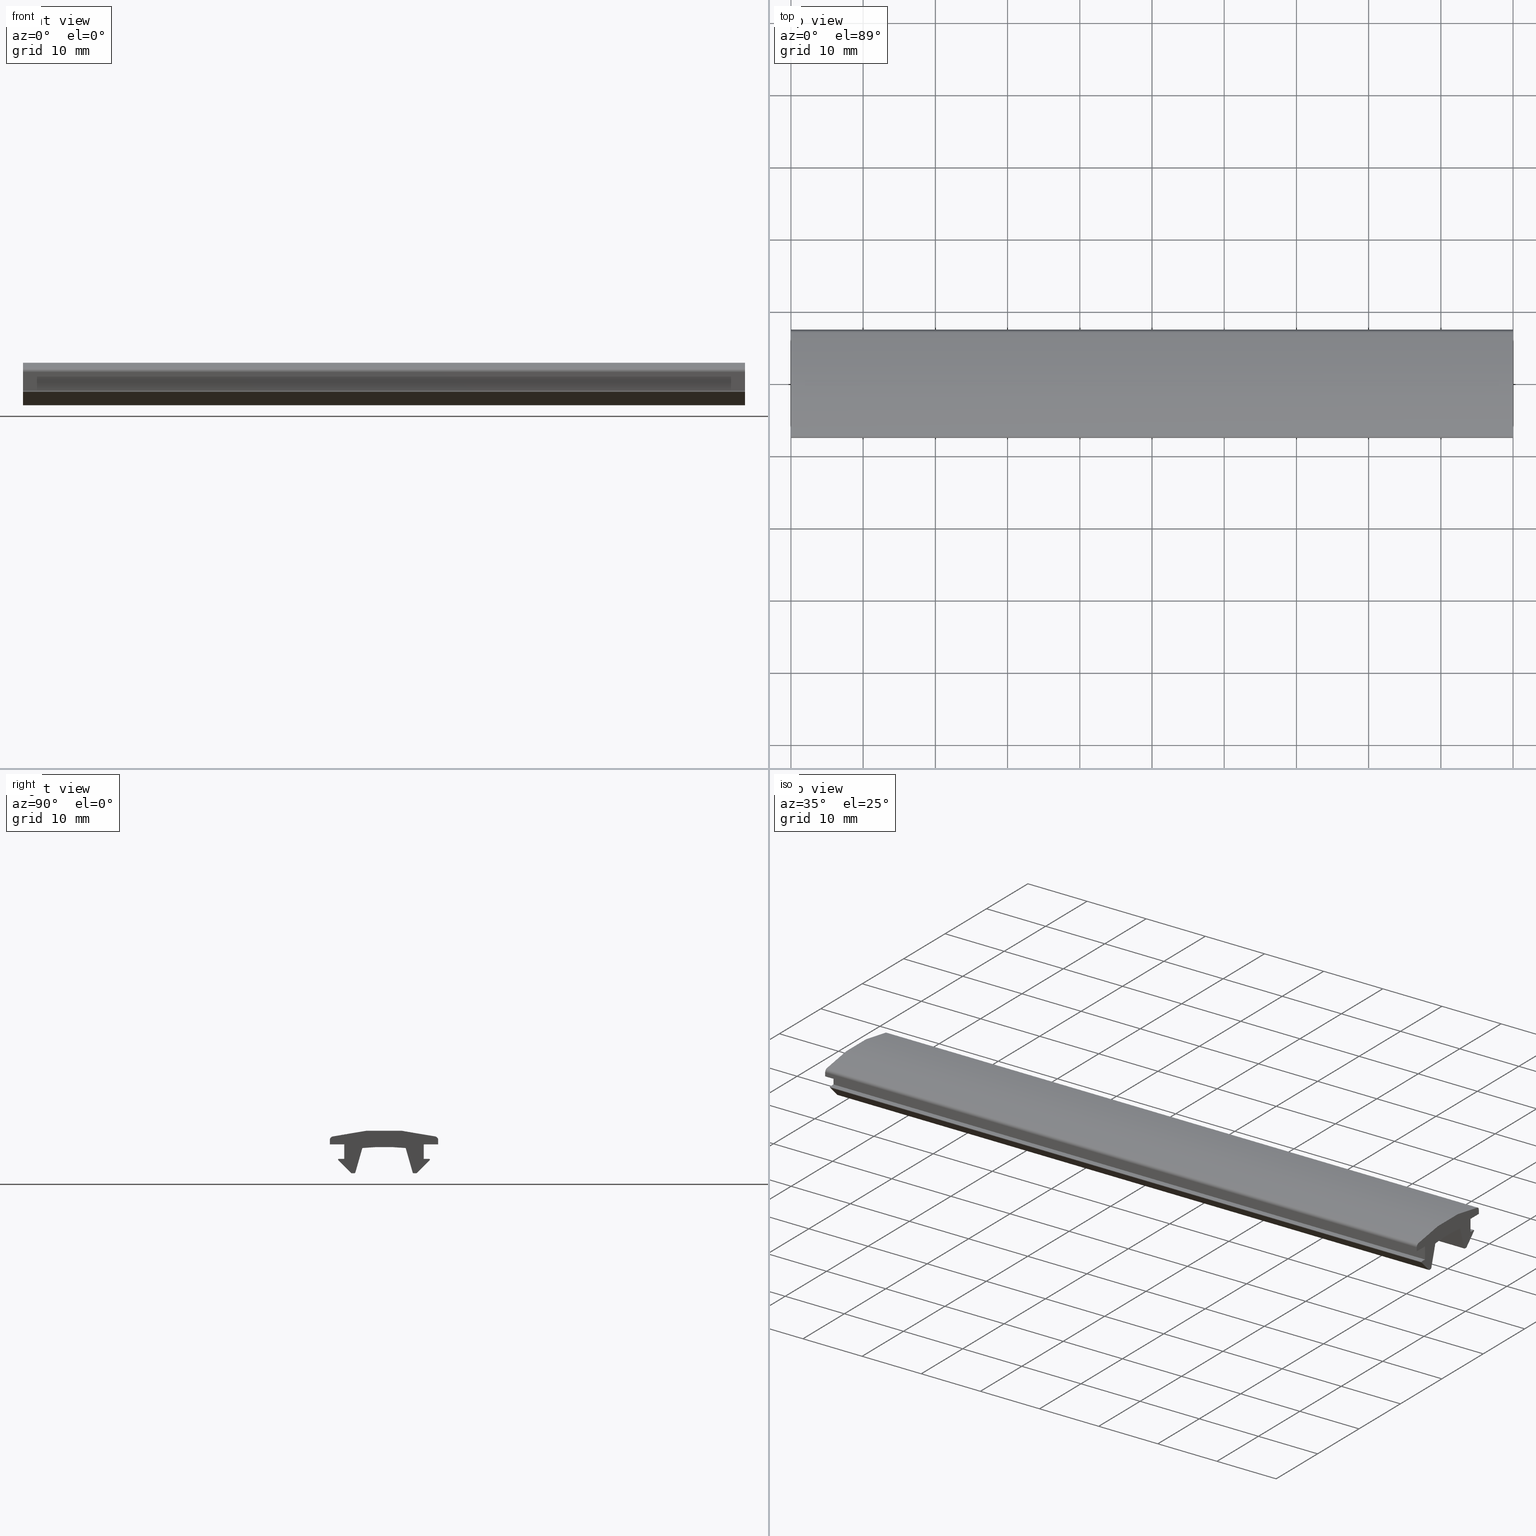
[diagram: canonical four-view strip — front | top / right | iso, engineering-drawing reading convention]
A machine part, canonical four-view strip (front | top / right | iso — engineering-drawing reading convention). The complete STEP part file that produces these views, byte-faithful:
ISO-10303-21;
HEADER;
/****************************************************************
 * Generated by software with PDE/Lib inside                    *
 * PDElib Version v4.4, created Mon 02/23/2004                  *
 * International Technegroup Inc. (www.iti-oh.com)              *
 ****************************************************************/
FILE_DESCRIPTION(('STEP AP203'),'2;1');
FILE_NAME('21.007.00.stp','2011-02-14T09:10:53',(''),(''),'2009.3.110','THINKDESIGN','');
FILE_SCHEMA(('CONFIG_CONTROL_DESIGN'));
ENDSEC;
DATA;
#2=CARTESIAN_POINT('',(100.000000009999990,-6.258578643762680,-1.750281450180138));
#3=DIRECTION('',(-1.0,-6.123234E-017,0.0));
#4=DIRECTION('',(-5.657131E-017,0.923879532511289,0.382683432365084));
#5=AXIS2_PLACEMENT_3D('',#2,#3,#4);
#6=CYLINDRICAL_SURFACE('',#5,0.100000000000000);
#7=CARTESIAN_POINT('',(100.0,-6.358578643762679,-1.750281450180139));
#8=VERTEX_POINT('',#7);
#9=CARTESIAN_POINT('',(100.0,-6.329289321881336,-1.820992128298793));
#10=VERTEX_POINT('',#9);
#11=CARTESIAN_POINT('',(100.0,-6.258578643762680,-1.750281450180139));
#12=DIRECTION('',(1.0,6.123234E-017,-3.749399E-033));
#13=DIRECTION('',(6.123234E-017,-1.0,6.123234E-017));
#14=AXIS2_PLACEMENT_3D('',#11,#12,#13);
#15=CIRCLE('',#14,0.100000000000000);
#16=EDGE_CURVE('',#8,#10,#15,.T.);
#17=ORIENTED_EDGE('',*,*,#16,.F.);
#18=CARTESIAN_POINT('',(3.893506E-016,-6.358578643762685,-1.750281450180139));
#19=VERTEX_POINT('',#18);
#20=CARTESIAN_POINT('',(100.0,-6.358578643762679,-1.750281450180139));
#21=DIRECTION('',(-1.0,0.0,0.0));
#22=VECTOR('',#21,100.0);
#23=LINE('',#20,#22);
#24=EDGE_CURVE('',#8,#19,#23,.T.);
#25=ORIENTED_EDGE('',*,*,#24,.T.);
#26=CARTESIAN_POINT('',(3.875572E-016,-6.329289321881340,-1.820992128298793));
#27=VERTEX_POINT('',#26);
#28=CARTESIAN_POINT('',(3.832274E-016,-6.258578643762686,-1.750281450180139));
#29=DIRECTION('',(-1.0,-6.123234E-017,3.749399E-033));
#30=DIRECTION('',(6.123234E-017,-1.0,6.123234E-017));
#31=AXIS2_PLACEMENT_3D('',#28,#29,#30);
#32=CIRCLE('',#31,0.100000000000000);
#33=EDGE_CURVE('',#27,#19,#32,.T.);
#34=ORIENTED_EDGE('',*,*,#33,.F.);
#35=CARTESIAN_POINT('',(100.0,-6.329289321881334,-1.820992128298793));
#36=DIRECTION('',(-1.0,0.0,0.0));
#37=VECTOR('',#36,100.0);
#38=LINE('',#35,#37);
#39=EDGE_CURVE('',#10,#27,#38,.T.);
#40=ORIENTED_EDGE('',*,*,#39,.F.);
#41=EDGE_LOOP('',(#17,#25,#34,#40));
#42=FACE_OUTER_BOUND('',#41,.T.);
#43=ADVANCED_FACE('',(#42),#6,.T.);
#44=CARTESIAN_POINT('',(100.0,8.250000000000011,-3.949722514642862));
#45=DIRECTION('',(-1.0,0.0,0.0));
#46=DIRECTION('',(0.0,-1.0,0.0));
#47=AXIS2_PLACEMENT_3D('',#44,#45,#46);
#48=PLANE('',#47);
#49=CARTESIAN_POINT('',(100.0,-5.499999999999989,-1.650281450180138));
#50=VERTEX_POINT('',#49);
#51=CARTESIAN_POINT('',(100.0,-6.258578643762679,-1.650281450180138));
#52=VERTEX_POINT('',#51);
#53=CARTESIAN_POINT('',(100.0,-5.499999999999989,-1.650281450180138));
#54=DIRECTION('',(0.0,-1.0,0.0));
#55=VECTOR('',#54,0.758578643762690);
#56=LINE('',#53,#55);
#57=EDGE_CURVE('',#50,#52,#56,.T.);
#58=ORIENTED_EDGE('',*,*,#57,.T.);
#59=CARTESIAN_POINT('',(100.0,-6.258578643762680,-1.750281450180139));
#60=DIRECTION('',(1.0,6.123234E-017,-3.749399E-033));
#61=DIRECTION('',(6.123234E-017,-1.0,6.123234E-017));
#62=AXIS2_PLACEMENT_3D('',#59,#60,#61);
#63=CIRCLE('',#62,0.100000000000000);
#64=EDGE_CURVE('',#52,#8,#63,.T.);
#65=ORIENTED_EDGE('',*,*,#64,.T.);
#66=ORIENTED_EDGE('',*,*,#16,.T.);
#67=CARTESIAN_POINT('',(100.0,-4.558578643762683,-3.591702806417446));
#68=VERTEX_POINT('',#67);
#69=CARTESIAN_POINT('',(100.0,-6.329289321881337,-1.820992128298791));
#70=DIRECTION('',(0.0,0.707106781186547,-0.707106781186548));
#71=VECTOR('',#70,2.504163056034261);
#72=LINE('',#69,#71);
#73=EDGE_CURVE('',#10,#68,#72,.T.);
#74=ORIENTED_EDGE('',*,*,#73,.T.);
#75=CARTESIAN_POINT('',(100.0,-4.417157287525374,-3.650281450180138));
#76=VERTEX_POINT('',#75);
#77=CARTESIAN_POINT('',(100.0,-4.417157287525374,-3.450281450180138));
#78=DIRECTION('',(1.0,6.123234E-017,-3.749399E-033));
#79=DIRECTION('',(6.123234E-017,-1.0,6.123234E-017));
#80=AXIS2_PLACEMENT_3D('',#77,#78,#79);
#81=CIRCLE('',#80,0.200000000000000);
#82=EDGE_CURVE('',#68,#76,#81,.T.);
#83=ORIENTED_EDGE('',*,*,#82,.T.);
#84=CARTESIAN_POINT('',(100.0,-4.150860282550864,-3.650281450180138));
#85=VERTEX_POINT('',#84);
#86=CARTESIAN_POINT('',(100.0,-4.150860282550864,-3.650281450180137));
#87=DIRECTION('',(0.0,-1.0,0.0));
#88=VECTOR('',#87,0.266297004974509);
#89=LINE('',#86,#88);
#90=EDGE_CURVE('',#85,#76,#89,.T.);
#91=ORIENTED_EDGE('',*,*,#90,.F.);
#92=CARTESIAN_POINT('',(100.0,-3.958555493022700,-3.505225675759615));
#93=VERTEX_POINT('',#92);
#94=CARTESIAN_POINT('',(100.0,-4.150860282550863,-3.450281450180138));
#95=DIRECTION('',(1.0,6.123234E-017,-3.749399E-033));
#96=DIRECTION('',(6.123234E-017,-1.0,6.123234E-017));
#97=AXIS2_PLACEMENT_3D('',#94,#95,#96);
#98=CIRCLE('',#97,0.200000000000000);
#99=EDGE_CURVE('',#85,#93,#98,.T.);
#100=ORIENTED_EDGE('',*,*,#99,.T.);
#101=CARTESIAN_POINT('',(100.0,-2.999999999999973,-0.150281450180138));
#102=VERTEX_POINT('',#101);
#103=CARTESIAN_POINT('',(100.0,-2.999999999999983,-0.150281450180136));
#104=DIRECTION('',(0.0,-0.274721127897380,-0.961523947640823));
#105=VECTOR('',#104,3.489194662089393);
#106=LINE('',#103,#105);
#107=EDGE_CURVE('',#102,#93,#106,.T.);
#108=ORIENTED_EDGE('',*,*,#107,.F.);
#109=CARTESIAN_POINT('',(100.0,3.000000000000010,-0.150281450180143));
#110=VERTEX_POINT('',#109);
#111=CARTESIAN_POINT('',(100.0,-8.881784E-016,-30.018956110195745));
#112=DIRECTION('',(1.0,6.123234E-017,-3.749399E-033));
#113=DIRECTION('',(6.123234E-017,-1.0,6.123234E-017));
#114=AXIS2_PLACEMENT_3D('',#111,#112,#113);
#115=CIRCLE('',#114,30.018956110195745);
#116=EDGE_CURVE('',#110,#102,#115,.T.);
#117=ORIENTED_EDGE('',*,*,#116,.F.);
#118=CARTESIAN_POINT('',(100.0,3.958555493022716,-3.505225675759613));
#119=VERTEX_POINT('',#118);
#120=CARTESIAN_POINT('',(100.0,3.958555493022716,-3.505225675759613));
#121=DIRECTION('',(0.0,-0.274721127897378,0.961523947640823));
#122=VECTOR('',#121,3.489194662089381);
#123=LINE('',#120,#122);
#124=EDGE_CURVE('',#119,#110,#123,.T.);
#125=ORIENTED_EDGE('',*,*,#124,.F.);
#126=CARTESIAN_POINT('',(100.0,4.150860282550879,-3.650281450180138));
#127=VERTEX_POINT('',#126);
#128=CARTESIAN_POINT('',(100.0,4.150860282550879,-3.450281450180138));
#129=DIRECTION('',(1.0,6.123234E-017,-3.749399E-033));
#130=DIRECTION('',(6.123234E-017,-1.0,6.123234E-017));
#131=AXIS2_PLACEMENT_3D('',#128,#129,#130);
#132=CIRCLE('',#131,0.200000000000000);
#133=EDGE_CURVE('',#119,#127,#132,.T.);
#134=ORIENTED_EDGE('',*,*,#133,.T.);
#135=CARTESIAN_POINT('',(100.0,4.417157287525392,-3.650281450180138));
#136=VERTEX_POINT('',#135);
#137=CARTESIAN_POINT('',(100.0,4.417157287525392,-3.650281450180138));
#138=DIRECTION('',(0.0,-1.0,0.0));
#139=VECTOR('',#138,0.266297004974513);
#140=LINE('',#137,#139);
#141=EDGE_CURVE('',#136,#127,#140,.T.);
#142=ORIENTED_EDGE('',*,*,#141,.F.);
#143=CARTESIAN_POINT('',(100.0,4.558578643762702,-3.591702806417446));
#144=VERTEX_POINT('',#143);
#145=CARTESIAN_POINT('',(100.0,4.417157287525392,-3.450281450180138));
#146=DIRECTION('',(1.0,6.123234E-017,-3.749399E-033));
#147=DIRECTION('',(6.123234E-017,-1.0,6.123234E-017));
#148=AXIS2_PLACEMENT_3D('',#145,#146,#147);
#149=CIRCLE('',#148,0.200000000000000);
#150=EDGE_CURVE('',#136,#144,#149,.T.);
#151=ORIENTED_EDGE('',*,*,#150,.T.);
#152=CARTESIAN_POINT('',(100.0,6.329289321881354,-1.820992128298794));
#153=VERTEX_POINT('',#152);
#154=CARTESIAN_POINT('',(100.0,6.329289321881354,-1.820992128298794));
#155=DIRECTION('',(0.0,-0.707106781186547,-0.707106781186548));
#156=VECTOR('',#155,2.504163056034259);
#157=LINE('',#154,#156);
#158=EDGE_CURVE('',#153,#144,#157,.T.);
#159=ORIENTED_EDGE('',*,*,#158,.F.);
#160=CARTESIAN_POINT('',(100.0,6.258578643762696,-1.650281450180139));
#161=VERTEX_POINT('',#160);
#162=CARTESIAN_POINT('',(100.0,6.258578643762696,-1.750281450180139));
#163=DIRECTION('',(1.0,6.123234E-017,-3.749399E-033));
#164=DIRECTION('',(6.123234E-017,-1.0,6.123234E-017));
#165=AXIS2_PLACEMENT_3D('',#162,#163,#164);
#166=CIRCLE('',#165,0.099999999999999);
#167=EDGE_CURVE('',#153,#161,#166,.T.);
#168=ORIENTED_EDGE('',*,*,#167,.T.);
#169=CARTESIAN_POINT('',(100.0,5.500000000000010,-1.650281450180139));
#170=VERTEX_POINT('',#169);
#171=CARTESIAN_POINT('',(100.0,5.500000000000010,-1.650281450180139));
#172=DIRECTION('',(0.0,1.0,0.0));
#173=VECTOR('',#172,0.758578643762686);
#174=LINE('',#171,#173);
#175=EDGE_CURVE('',#170,#161,#174,.T.);
#176=ORIENTED_EDGE('',*,*,#175,.F.);
#177=CARTESIAN_POINT('',(100.0,5.500000000000010,0.349718549819861));
#178=VERTEX_POINT('',#177);
#179=CARTESIAN_POINT('',(100.0,5.500000000000010,0.349718549819861));
#180=DIRECTION('',(0.0,0.0,-1.0));
#181=VECTOR('',#180,2.0);
#182=LINE('',#179,#181);
#183=EDGE_CURVE('',#178,#170,#182,.T.);
#184=ORIENTED_EDGE('',*,*,#183,.F.);
#185=CARTESIAN_POINT('',(100.0,7.500000000000010,0.349718549819861));
#186=VERTEX_POINT('',#185);
#187=CARTESIAN_POINT('',(100.0,7.500000000000010,0.349718549819861));
#188=DIRECTION('',(0.0,-1.0,0.0));
#189=VECTOR('',#188,2.0);
#190=LINE('',#187,#189);
#191=EDGE_CURVE('',#186,#178,#190,.T.);
#192=ORIENTED_EDGE('',*,*,#191,.F.);
#193=CARTESIAN_POINT('',(100.0,7.500000000000010,0.964682297960203));
#194=VERTEX_POINT('',#193);
#195=CARTESIAN_POINT('',(100.0,7.500000000000010,0.964682297960203));
#196=DIRECTION('',(0.0,0.0,-1.0));
#197=VECTOR('',#196,0.614963748140341);
#198=LINE('',#195,#197);
#199=EDGE_CURVE('',#194,#186,#198,.T.);
#200=ORIENTED_EDGE('',*,*,#199,.F.);
#201=CARTESIAN_POINT('',(100.0,7.124444444444454,1.448948320149363));
#202=VERTEX_POINT('',#201);
#203=CARTESIAN_POINT('',(100.0,7.000000000000004,0.964682297960203));
#204=DIRECTION('',(1.0,6.123234E-017,-3.749399E-033));
#205=DIRECTION('',(6.123234E-017,-1.0,6.123234E-017));
#206=AXIS2_PLACEMENT_3D('',#203,#204,#205);
#207=CIRCLE('',#206,0.500000000000001);
#208=EDGE_CURVE('',#194,#202,#207,.T.);
#209=ORIENTED_EDGE('',*,*,#208,.T.);
#210=CARTESIAN_POINT('',(100.0,-7.124444444444433,1.448948320149374));
#211=VERTEX_POINT('',#210);
#212=CARTESIAN_POINT('',(100.0,-1.065814E-014,-26.275281450180184));
#213=DIRECTION('',(1.0,6.123234E-017,-3.749399E-033));
#214=DIRECTION('',(6.123234E-017,-1.0,6.123234E-017));
#215=AXIS2_PLACEMENT_3D('',#212,#213,#214);
#216=CIRCLE('',#215,28.625000000000050);
#217=EDGE_CURVE('',#202,#211,#216,.T.);
#218=ORIENTED_EDGE('',*,*,#217,.T.);
#219=CARTESIAN_POINT('',(100.0,-7.499999999999989,0.964682297960210));
#220=VERTEX_POINT('',#219);
#221=CARTESIAN_POINT('',(100.0,-6.999999999999989,0.964682297960210));
#222=DIRECTION('',(1.0,6.123234E-017,-3.749399E-033));
#223=DIRECTION('',(6.123234E-017,-1.0,6.123234E-017));
#224=AXIS2_PLACEMENT_3D('',#221,#222,#223);
#225=CIRCLE('',#224,0.500000000000000);
#226=EDGE_CURVE('',#211,#220,#225,.T.);
#227=ORIENTED_EDGE('',*,*,#226,.T.);
#228=CARTESIAN_POINT('',(100.0,-7.499999999999989,0.349718549819862));
#229=VERTEX_POINT('',#228);
#230=CARTESIAN_POINT('',(100.0,-7.499999999999989,0.349718549819862));
#231=DIRECTION('',(0.0,0.0,1.0));
#232=VECTOR('',#231,0.614963748140347);
#233=LINE('',#230,#232);
#234=EDGE_CURVE('',#229,#220,#233,.T.);
#235=ORIENTED_EDGE('',*,*,#234,.F.);
#236=CARTESIAN_POINT('',(100.0,-5.499999999999989,0.349718549819862));
#237=VERTEX_POINT('',#236);
#238=CARTESIAN_POINT('',(100.0,-7.499999999999989,0.349718549819862));
#239=DIRECTION('',(0.0,1.0,0.0));
#240=VECTOR('',#239,2.0);
#241=LINE('',#238,#240);
#242=EDGE_CURVE('',#229,#237,#241,.T.);
#243=ORIENTED_EDGE('',*,*,#242,.T.);
#244=CARTESIAN_POINT('',(100.0,-5.499999999999989,0.349718549819862));
#245=DIRECTION('',(0.0,0.0,-1.0));
#246=VECTOR('',#245,2.0);
#247=LINE('',#244,#246);
#248=EDGE_CURVE('',#237,#50,#247,.T.);
#249=ORIENTED_EDGE('',*,*,#248,.T.);
#250=EDGE_LOOP('',(#58,#65,#66,#74,#83,#91,#100,#108,#117,#125,#134,#142,#151,#159,#168,#176,#184,#192,#200,#209,#218,#227,#235,#243,#249));
#251=FACE_OUTER_BOUND('',#250,.T.);
#252=ADVANCED_FACE('',(#251),#48,.F.);
#253=CARTESIAN_POINT('',(-5.051668E-016,8.250000000000004,-3.949722514642862));
#254=DIRECTION('',(-1.0,0.0,0.0));
#255=DIRECTION('',(0.0,-1.0,0.0));
#256=AXIS2_PLACEMENT_3D('',#253,#254,#255);
#257=PLANE('',#256);
#258=CARTESIAN_POINT('',(2.791324E-016,-4.558578643762690,-3.591702806417445));
#259=VERTEX_POINT('',#258);
#260=CARTESIAN_POINT('',(3.875572E-016,-6.329289321881340,-1.820992128298793));
#261=DIRECTION('',(-4.329780E-017,0.707106781186547,-0.707106781186548));
#262=VECTOR('',#261,2.504163056034258);
#263=LINE('',#260,#262);
#264=EDGE_CURVE('',#27,#259,#263,.T.);
#265=ORIENTED_EDGE('',*,*,#264,.F.);
#266=ORIENTED_EDGE('',*,*,#33,.T.);
#267=CARTESIAN_POINT('',(3.832274E-016,-6.258578643762686,-1.650281450180138));
#268=VERTEX_POINT('',#267);
#269=CARTESIAN_POINT('',(3.832274E-016,-6.258578643762686,-1.750281450180139));
#270=DIRECTION('',(-1.0,-6.123234E-017,3.749399E-033));
#271=DIRECTION('',(6.123234E-017,-1.0,6.123234E-017));
#272=AXIS2_PLACEMENT_3D('',#269,#270,#271);
#273=CIRCLE('',#272,0.100000000000000);
#274=EDGE_CURVE('',#19,#268,#273,.T.);
#275=ORIENTED_EDGE('',*,*,#274,.T.);
#276=CARTESIAN_POINT('',(3.367779E-016,-5.499999999999996,-1.650281450180138));
#277=VERTEX_POINT('',#276);
#278=CARTESIAN_POINT('',(3.367779E-016,-5.499999999999996,-1.650281450180138));
#279=DIRECTION('',(0.0,-1.0,0.0));
#280=VECTOR('',#279,0.758578643762690);
#281=LINE('',#278,#280);
#282=EDGE_CURVE('',#277,#268,#281,.T.);
#283=ORIENTED_EDGE('',*,*,#282,.F.);
#284=CARTESIAN_POINT('',(3.367779E-016,-5.499999999999995,0.349718549819862));
#285=VERTEX_POINT('',#284);
#286=CARTESIAN_POINT('',(3.367779E-016,-5.499999999999995,0.349718549819862));
#287=DIRECTION('',(0.0,0.0,-1.0));
#288=VECTOR('',#287,2.0);
#289=LINE('',#286,#288);
#290=EDGE_CURVE('',#285,#277,#289,.T.);
#291=ORIENTED_EDGE('',*,*,#290,.F.);
#292=CARTESIAN_POINT('',(4.592425E-016,-7.499999999999996,0.349718549819862));
#293=VERTEX_POINT('',#292);
#294=CARTESIAN_POINT('',(4.592425E-016,-7.499999999999996,0.349718549819862));
#295=DIRECTION('',(0.0,1.0,0.0));
#296=VECTOR('',#295,2.0);
#297=LINE('',#294,#296);
#298=EDGE_CURVE('',#293,#285,#297,.T.);
#299=ORIENTED_EDGE('',*,*,#298,.F.);
#300=CARTESIAN_POINT('',(4.592425E-016,-7.499999999999996,0.964682297960210));
#301=VERTEX_POINT('',#300);
#302=CARTESIAN_POINT('',(4.592425E-016,-7.499999999999996,0.349718549819862));
#303=DIRECTION('',(0.0,0.0,1.0));
#304=VECTOR('',#303,0.614963748140347);
#305=LINE('',#302,#304);
#306=EDGE_CURVE('',#293,#301,#305,.T.);
#307=ORIENTED_EDGE('',*,*,#306,.T.);
#308=CARTESIAN_POINT('',(4.362464E-016,-7.124444444444439,1.448948320149374));
#309=VERTEX_POINT('',#308);
#310=CARTESIAN_POINT('',(4.286264E-016,-6.999999999999996,0.964682297960210));
#311=DIRECTION('',(-1.0,-6.123234E-017,3.749399E-033));
#312=DIRECTION('',(6.123234E-017,-1.0,6.123234E-017));
#313=AXIS2_PLACEMENT_3D('',#310,#311,#312);
#314=CIRCLE('',#313,0.500000000000000);
#315=EDGE_CURVE('',#301,#309,#314,.T.);
#316=ORIENTED_EDGE('',*,*,#315,.T.);
#317=CARTESIAN_POINT('',(-4.362464E-016,7.124444444444449,1.448948320149363));
#318=VERTEX_POINT('',#317);
#319=CARTESIAN_POINT('',(9.860761E-031,-1.687539E-014,-26.275281450180184));
#320=DIRECTION('',(1.0,6.123234E-017,-3.749399E-033));
#321=DIRECTION('',(6.123234E-017,-1.0,6.123234E-017));
#322=AXIS2_PLACEMENT_3D('',#319,#320,#321);
#323=CIRCLE('',#322,28.625000000000050);
#324=EDGE_CURVE('',#318,#309,#323,.T.);
#325=ORIENTED_EDGE('',*,*,#324,.F.);
#326=CARTESIAN_POINT('',(-4.592425E-016,7.500000000000004,0.964682297960203));
#327=VERTEX_POINT('',#326);
#328=CARTESIAN_POINT('',(-4.286264E-016,6.999999999999999,0.964682297960203));
#329=DIRECTION('',(-1.0,-6.123234E-017,3.749399E-033));
#330=DIRECTION('',(6.123234E-017,-1.0,6.123234E-017));
#331=AXIS2_PLACEMENT_3D('',#328,#329,#330);
#332=CIRCLE('',#331,0.500000000000001);
#333=EDGE_CURVE('',#318,#327,#332,.T.);
#334=ORIENTED_EDGE('',*,*,#333,.T.);
#335=CARTESIAN_POINT('',(-4.592425E-016,7.500000000000004,0.349718549819861));
#336=VERTEX_POINT('',#335);
#337=CARTESIAN_POINT('',(-4.592425E-016,7.500000000000004,0.964682297960203));
#338=DIRECTION('',(0.0,0.0,-1.0));
#339=VECTOR('',#338,0.614963748140341);
#340=LINE('',#337,#339);
#341=EDGE_CURVE('',#327,#336,#340,.T.);
#342=ORIENTED_EDGE('',*,*,#341,.T.);
#343=CARTESIAN_POINT('',(-3.367779E-016,5.500000000000004,0.349718549819861));
#344=VERTEX_POINT('',#343);
#345=CARTESIAN_POINT('',(-4.592425E-016,7.500000000000004,0.349718549819861));
#346=DIRECTION('',(0.0,-1.0,0.0));
#347=VECTOR('',#346,2.0);
#348=LINE('',#345,#347);
#349=EDGE_CURVE('',#336,#344,#348,.T.);
#350=ORIENTED_EDGE('',*,*,#349,.T.);
#351=CARTESIAN_POINT('',(-3.367779E-016,5.500000000000004,-1.650281450180139));
#352=VERTEX_POINT('',#351);
#353=CARTESIAN_POINT('',(-3.367779E-016,5.500000000000004,0.349718549819861));
#354=DIRECTION('',(0.0,0.0,-1.0));
#355=VECTOR('',#354,2.0);
#356=LINE('',#353,#355);
#357=EDGE_CURVE('',#344,#352,#356,.T.);
#358=ORIENTED_EDGE('',*,*,#357,.T.);
#359=CARTESIAN_POINT('',(-3.832274E-016,6.258578643762690,-1.650281450180139));
#360=VERTEX_POINT('',#359);
#361=CARTESIAN_POINT('',(-3.367779E-016,5.500000000000004,-1.650281450180139));
#362=DIRECTION('',(0.0,1.0,0.0));
#363=VECTOR('',#362,0.758578643762686);
#364=LINE('',#361,#363);
#365=EDGE_CURVE('',#352,#360,#364,.T.);
#366=ORIENTED_EDGE('',*,*,#365,.T.);
#367=CARTESIAN_POINT('',(-3.875572E-016,6.329289321881348,-1.820992128298794));
#368=VERTEX_POINT('',#367);
#369=CARTESIAN_POINT('',(-3.832274E-016,6.258578643762690,-1.750281450180139));
#370=DIRECTION('',(-1.0,-6.123234E-017,3.749399E-033));
#371=DIRECTION('',(6.123234E-017,-1.0,6.123234E-017));
#372=AXIS2_PLACEMENT_3D('',#369,#370,#371);
#373=CIRCLE('',#372,0.099999999999999);
#374=EDGE_CURVE('',#360,#368,#373,.T.);
#375=ORIENTED_EDGE('',*,*,#374,.T.);
#376=CARTESIAN_POINT('',(-2.791324E-016,4.558578643762696,-3.591702806417446));
#377=VERTEX_POINT('',#376);
#378=CARTESIAN_POINT('',(-3.875572E-016,6.329289321881347,-1.820992128298792));
#379=DIRECTION('',(4.329780E-017,-0.707106781186547,-0.707106781186548));
#380=VECTOR('',#379,2.504163056034259);
#381=LINE('',#378,#380);
#382=EDGE_CURVE('',#368,#377,#381,.T.);
#383=ORIENTED_EDGE('',*,*,#382,.T.);
#384=CARTESIAN_POINT('',(-2.704729E-016,4.417157287525387,-3.650281450180138));
#385=VERTEX_POINT('',#384);
#386=CARTESIAN_POINT('',(-2.704729E-016,4.417157287525387,-3.450281450180138));
#387=DIRECTION('',(-1.0,-6.123234E-017,3.749399E-033));
#388=DIRECTION('',(6.123234E-017,-1.0,6.123234E-017));
#389=AXIS2_PLACEMENT_3D('',#386,#387,#388);
#390=CIRCLE('',#389,0.200000000000000);
#391=EDGE_CURVE('',#377,#385,#390,.T.);
#392=ORIENTED_EDGE('',*,*,#391,.T.);
#393=CARTESIAN_POINT('',(-2.541669E-016,4.150860282550874,-3.650281450180138));
#394=VERTEX_POINT('',#393);
#395=CARTESIAN_POINT('',(-2.704729E-016,4.417157287525387,-3.650281450180138));
#396=DIRECTION('',(0.0,-1.0,0.0));
#397=VECTOR('',#396,0.266297004974513);
#398=LINE('',#395,#397);
#399=EDGE_CURVE('',#385,#394,#398,.T.);
#400=ORIENTED_EDGE('',*,*,#399,.T.);
#401=CARTESIAN_POINT('',(-2.423916E-016,3.958555493022710,-3.505225675759613));
#402=VERTEX_POINT('',#401);
#403=CARTESIAN_POINT('',(-2.541669E-016,4.150860282550874,-3.450281450180138));
#404=DIRECTION('',(-1.0,-6.123234E-017,3.749399E-033));
#405=DIRECTION('',(6.123234E-017,-1.0,6.123234E-017));
#406=AXIS2_PLACEMENT_3D('',#403,#404,#405);
#407=CIRCLE('',#406,0.200000000000000);
#408=EDGE_CURVE('',#394,#402,#407,.T.);
#409=ORIENTED_EDGE('',*,*,#408,.T.);
#410=CARTESIAN_POINT('',(-1.836970E-016,3.000000000000004,-0.150281450180143));
#411=VERTEX_POINT('',#410);
#412=CARTESIAN_POINT('',(-2.423916E-016,3.958555493022710,-3.505225675759614));
#413=DIRECTION('',(1.682182E-017,-0.274721127897378,0.961523947640823));
#414=VECTOR('',#413,3.489194662089383);
#415=LINE('',#412,#414);
#416=EDGE_CURVE('',#402,#411,#415,.T.);
#417=ORIENTED_EDGE('',*,*,#416,.T.);
#418=CARTESIAN_POINT('',(1.836970E-016,-2.999999999999980,-0.150281450180138));
#419=VERTEX_POINT('',#418);
#420=CARTESIAN_POINT('',(3.944305E-031,-7.105427E-015,-30.018956110195745));
#421=DIRECTION('',(1.0,6.123234E-017,-3.749399E-033));
#422=DIRECTION('',(6.123234E-017,-1.0,6.123234E-017));
#423=AXIS2_PLACEMENT_3D('',#420,#421,#422);
#424=CIRCLE('',#423,30.018956110195745);
#425=EDGE_CURVE('',#411,#419,#424,.T.);
#426=ORIENTED_EDGE('',*,*,#425,.T.);
#427=CARTESIAN_POINT('',(2.423916E-016,-3.958555493022705,-3.505225675759614));
#428=VERTEX_POINT('',#427);
#429=CARTESIAN_POINT('',(1.836970E-016,-2.999999999999989,-0.150281450180136));
#430=DIRECTION('',(1.682182E-017,-0.274721127897380,-0.961523947640823));
#431=VECTOR('',#430,3.489194662089392);
#432=LINE('',#429,#431);
#433=EDGE_CURVE('',#419,#428,#432,.T.);
#434=ORIENTED_EDGE('',*,*,#433,.T.);
#435=CARTESIAN_POINT('',(2.541669E-016,-4.150860282550871,-3.650281450180138));
#436=VERTEX_POINT('',#435);
#437=CARTESIAN_POINT('',(2.541669E-016,-4.150860282550870,-3.450281450180138));
#438=DIRECTION('',(-1.0,-6.123234E-017,3.749399E-033));
#439=DIRECTION('',(6.123234E-017,-1.0,6.123234E-017));
#440=AXIS2_PLACEMENT_3D('',#437,#438,#439);
#441=CIRCLE('',#440,0.200000000000000);
#442=EDGE_CURVE('',#428,#436,#441,.T.);
#443=ORIENTED_EDGE('',*,*,#442,.T.);
#444=CARTESIAN_POINT('',(2.704729E-016,-4.417157287525380,-3.650281450180138));
#445=VERTEX_POINT('',#444);
#446=CARTESIAN_POINT('',(2.541669E-016,-4.150860282550871,-3.650281450180137));
#447=DIRECTION('',(0.0,-1.0,0.0));
#448=VECTOR('',#447,0.266297004974509);
#449=LINE('',#446,#448);
#450=EDGE_CURVE('',#436,#445,#449,.T.);
#451=ORIENTED_EDGE('',*,*,#450,.T.);
#452=CARTESIAN_POINT('',(2.704729E-016,-4.417157287525380,-3.450281450180138));
#453=DIRECTION('',(-1.0,-6.123234E-017,3.749399E-033));
#454=DIRECTION('',(6.123234E-017,-1.0,6.123234E-017));
#455=AXIS2_PLACEMENT_3D('',#452,#453,#454);
#456=CIRCLE('',#455,0.200000000000000);
#457=EDGE_CURVE('',#445,#259,#456,.T.);
#458=ORIENTED_EDGE('',*,*,#457,.T.);
#459=EDGE_LOOP('',(#265,#266,#275,#283,#291,#299,#307,#316,#325,#334,#342,#350,#358,#366,#375,#383,#392,#400,#409,#417,#426,#434,#443,#451,#458));
#460=FACE_OUTER_BOUND('',#459,.T.);
#461=ADVANCED_FACE('',(#460),#257,.T.);
#462=CARTESIAN_POINT('',(-4.999999999999999,-7.499999999999996,0.318970362412845));
#463=DIRECTION('',(0.0,-1.0,0.0));
#464=DIRECTION('',(1.0,0.0,0.0));
#465=AXIS2_PLACEMENT_3D('',#462,#463,#464);
#466=PLANE('',#465);
#467=ORIENTED_EDGE('',*,*,#234,.T.);
#468=CARTESIAN_POINT('',(100.0,-7.499999999999989,0.964682297960210));
#469=DIRECTION('',(-1.0,0.0,0.0));
#470=VECTOR('',#469,100.0);
#471=LINE('',#468,#470);
#472=EDGE_CURVE('',#220,#301,#471,.T.);
#473=ORIENTED_EDGE('',*,*,#472,.T.);
#474=ORIENTED_EDGE('',*,*,#306,.F.);
#475=CARTESIAN_POINT('',(100.0,-7.499999999999989,0.349718549819862));
#476=DIRECTION('',(-1.0,0.0,0.0));
#477=VECTOR('',#476,100.0);
#478=LINE('',#475,#477);
#479=EDGE_CURVE('',#229,#293,#478,.T.);
#480=ORIENTED_EDGE('',*,*,#479,.F.);
#481=EDGE_LOOP('',(#467,#473,#474,#480));
#482=FACE_OUTER_BOUND('',#481,.T.);
#483=ADVANCED_FACE('',(#482),#466,.T.);
#484=CARTESIAN_POINT('',(105.0,4.430472137774120,-3.650281450180138));
#485=DIRECTION('',(0.0,0.0,-1.0));
#486=DIRECTION('',(0.0,-1.0,0.0));
#487=AXIS2_PLACEMENT_3D('',#484,#485,#486);
#488=PLANE('',#487);
#489=ORIENTED_EDGE('',*,*,#141,.T.);
#490=CARTESIAN_POINT('',(100.0,4.150860282550879,-3.650281450180138));
#491=DIRECTION('',(-1.0,0.0,0.0));
#492=VECTOR('',#491,100.0);
#493=LINE('',#490,#492);
#494=EDGE_CURVE('',#127,#394,#493,.T.);
#495=ORIENTED_EDGE('',*,*,#494,.T.);
#496=ORIENTED_EDGE('',*,*,#399,.F.);
#497=CARTESIAN_POINT('',(-2.704729E-016,4.417157287525387,-3.650281450180138));
#498=DIRECTION('',(1.0,0.0,0.0));
#499=VECTOR('',#498,100.0);
#500=LINE('',#497,#499);
#501=EDGE_CURVE('',#385,#136,#500,.T.);
#502=ORIENTED_EDGE('',*,*,#501,.T.);
#503=EDGE_LOOP('',(#489,#495,#496,#502));
#504=FACE_OUTER_BOUND('',#503,.T.);
#505=ADVANCED_FACE('',(#504),#488,.T.);
#506=CARTESIAN_POINT('',(105.0,-4.137545432302138,-3.650281450180137));
#507=DIRECTION('',(0.0,0.0,-1.0));
#508=DIRECTION('',(0.0,-1.0,0.0));
#509=AXIS2_PLACEMENT_3D('',#506,#507,#508);
#510=PLANE('',#509);
#511=ORIENTED_EDGE('',*,*,#450,.F.);
#512=CARTESIAN_POINT('',(2.541669E-016,-4.150860282550871,-3.650281450180138));
#513=DIRECTION('',(1.0,0.0,0.0));
#514=VECTOR('',#513,100.0);
#515=LINE('',#512,#514);
#516=EDGE_CURVE('',#436,#85,#515,.T.);
#517=ORIENTED_EDGE('',*,*,#516,.T.);
#518=ORIENTED_EDGE('',*,*,#90,.T.);
#519=CARTESIAN_POINT('',(100.0,-4.417157287525374,-3.650281450180138));
#520=DIRECTION('',(-1.0,0.0,0.0));
#521=VECTOR('',#520,100.0);
#522=LINE('',#519,#521);
#523=EDGE_CURVE('',#76,#445,#522,.T.);
#524=ORIENTED_EDGE('',*,*,#523,.T.);
#525=EDGE_LOOP('',(#511,#517,#518,#524));
#526=FACE_OUTER_BOUND('',#525,.T.);
#527=ADVANCED_FACE('',(#526),#510,.T.);
#528=CARTESIAN_POINT('',(105.0,7.500000000000012,0.318970362412844));
#529=DIRECTION('',(0.0,1.0,0.0));
#530=DIRECTION('',(-1.0,0.0,0.0));
#531=AXIS2_PLACEMENT_3D('',#528,#529,#530);
#532=PLANE('',#531);
#533=ORIENTED_EDGE('',*,*,#341,.F.);
#534=CARTESIAN_POINT('',(-4.592425E-016,7.500000000000004,0.964682297960203));
#535=DIRECTION('',(1.0,0.0,0.0));
#536=VECTOR('',#535,100.0);
#537=LINE('',#534,#536);
#538=EDGE_CURVE('',#327,#194,#537,.T.);
#539=ORIENTED_EDGE('',*,*,#538,.T.);
#540=ORIENTED_EDGE('',*,*,#199,.T.);
#541=CARTESIAN_POINT('',(100.0,7.500000000000010,0.349718549819861));
#542=DIRECTION('',(-1.0,0.0,0.0));
#543=VECTOR('',#542,100.0);
#544=LINE('',#541,#543);
#545=EDGE_CURVE('',#186,#336,#544,.T.);
#546=ORIENTED_EDGE('',*,*,#545,.T.);
#547=EDGE_LOOP('',(#533,#539,#540,#546));
#548=FACE_OUTER_BOUND('',#547,.T.);
#549=ADVANCED_FACE('',(#548),#532,.T.);
#550=CARTESIAN_POINT('',(-5.0,7.600000000000004,0.349718549819861));
#551=DIRECTION('',(0.0,0.0,-1.0));
#552=DIRECTION('',(1.0,0.0,0.0));
#553=AXIS2_PLACEMENT_3D('',#550,#551,#552);
#554=PLANE('',#553);
#555=ORIENTED_EDGE('',*,*,#191,.T.);
#556=CARTESIAN_POINT('',(100.0,5.500000000000010,0.349718549819861));
#557=DIRECTION('',(-1.0,0.0,0.0));
#558=VECTOR('',#557,100.0);
#559=LINE('',#556,#558);
#560=EDGE_CURVE('',#178,#344,#559,.T.);
#561=ORIENTED_EDGE('',*,*,#560,.T.);
#562=ORIENTED_EDGE('',*,*,#349,.F.);
#563=ORIENTED_EDGE('',*,*,#545,.F.);
#564=EDGE_LOOP('',(#555,#561,#562,#563));
#565=FACE_OUTER_BOUND('',#564,.T.);
#566=ADVANCED_FACE('',(#565),#554,.T.);
#567=CARTESIAN_POINT('',(105.0,5.500000000000012,-1.750281450180139));
#568=DIRECTION('',(0.0,1.0,0.0));
#569=DIRECTION('',(-1.0,0.0,0.0));
#570=AXIS2_PLACEMENT_3D('',#567,#568,#569);
#571=PLANE('',#570);
#572=ORIENTED_EDGE('',*,*,#183,.T.);
#573=CARTESIAN_POINT('',(100.0,5.500000000000010,-1.650281450180139));
#574=DIRECTION('',(-1.0,0.0,0.0));
#575=VECTOR('',#574,100.0);
#576=LINE('',#573,#575);
#577=EDGE_CURVE('',#170,#352,#576,.T.);
#578=ORIENTED_EDGE('',*,*,#577,.T.);
#579=ORIENTED_EDGE('',*,*,#357,.F.);
#580=ORIENTED_EDGE('',*,*,#560,.F.);
#581=EDGE_LOOP('',(#572,#578,#579,#580));
#582=FACE_OUTER_BOUND('',#581,.T.);
#583=ADVANCED_FACE('',(#582),#571,.T.);
#584=CARTESIAN_POINT('',(105.0,6.296507575950831,-1.650281450180139));
#585=DIRECTION('',(0.0,0.0,1.0));
#586=DIRECTION('',(-1.0,0.0,0.0));
#587=AXIS2_PLACEMENT_3D('',#584,#585,#586);
#588=PLANE('',#587);
#589=ORIENTED_EDGE('',*,*,#175,.T.);
#590=CARTESIAN_POINT('',(100.0,6.258578643762696,-1.650281450180139));
#591=DIRECTION('',(-1.0,0.0,0.0));
#592=VECTOR('',#591,100.0);
#593=LINE('',#590,#592);
#594=EDGE_CURVE('',#161,#360,#593,.T.);
#595=ORIENTED_EDGE('',*,*,#594,.T.);
#596=ORIENTED_EDGE('',*,*,#365,.F.);
#597=ORIENTED_EDGE('',*,*,#577,.F.);
#598=EDGE_LOOP('',(#589,#595,#596,#597));
#599=FACE_OUTER_BOUND('',#598,.T.);
#600=ADVANCED_FACE('',(#599),#588,.T.);
#601=CARTESIAN_POINT('',(101.296594217179890,6.500000000000004,-1.650281450180139));
#602=DIRECTION('',(-4.329780E-017,0.707106781186548,-0.707106781186547));
#603=DIRECTION('',(4.329780E-017,-0.707106781186547,-0.707106781186548));
#604=AXIS2_PLACEMENT_3D('',#601,#602,#603);
#605=PLANE('',#604);
#606=ORIENTED_EDGE('',*,*,#382,.F.);
#607=CARTESIAN_POINT('',(-3.875572E-016,6.329289321881348,-1.820992128298794));
#608=DIRECTION('',(1.0,0.0,0.0));
#609=VECTOR('',#608,100.0);
#610=LINE('',#607,#609);
#611=EDGE_CURVE('',#368,#153,#610,.T.);
#612=ORIENTED_EDGE('',*,*,#611,.T.);
#613=ORIENTED_EDGE('',*,*,#158,.T.);
#614=CARTESIAN_POINT('',(100.0,4.558578643762702,-3.591702806417446));
#615=DIRECTION('',(-1.0,0.0,0.0));
#616=VECTOR('',#615,100.0);
#617=LINE('',#614,#616);
#618=EDGE_CURVE('',#144,#377,#617,.T.);
#619=ORIENTED_EDGE('',*,*,#618,.T.);
#620=EDGE_LOOP('',(#606,#612,#613,#619));
#621=FACE_OUTER_BOUND('',#620,.T.);
#622=ADVANCED_FACE('',(#621),#605,.T.);
#623=CARTESIAN_POINT('',(105.0,-5.399999999999989,0.349718549819862));
#624=DIRECTION('',(0.0,0.0,1.0));
#625=DIRECTION('',(-1.0,0.0,0.0));
#626=AXIS2_PLACEMENT_3D('',#623,#624,#625);
#627=PLANE('',#626);
#628=ORIENTED_EDGE('',*,*,#479,.T.);
#629=ORIENTED_EDGE('',*,*,#298,.T.);
#630=CARTESIAN_POINT('',(100.0,-5.499999999999989,0.349718549819862));
#631=DIRECTION('',(-1.0,0.0,0.0));
#632=VECTOR('',#631,100.0);
#633=LINE('',#630,#632);
#634=EDGE_CURVE('',#237,#285,#633,.T.);
#635=ORIENTED_EDGE('',*,*,#634,.F.);
#636=ORIENTED_EDGE('',*,*,#242,.F.);
#637=EDGE_LOOP('',(#628,#629,#635,#636));
#638=FACE_OUTER_BOUND('',#637,.T.);
#639=ADVANCED_FACE('',(#638),#627,.F.);
#640=CARTESIAN_POINT('',(105.0,-5.499999999999989,-1.750281450180138));
#641=DIRECTION('',(0.0,1.0,0.0));
#642=DIRECTION('',(-1.0,0.0,0.0));
#643=AXIS2_PLACEMENT_3D('',#640,#641,#642);
#644=PLANE('',#643);
#645=ORIENTED_EDGE('',*,*,#634,.T.);
#646=ORIENTED_EDGE('',*,*,#290,.T.);
#647=CARTESIAN_POINT('',(100.0,-5.499999999999989,-1.650281450180138));
#648=DIRECTION('',(-1.0,0.0,0.0));
#649=VECTOR('',#648,100.0);
#650=LINE('',#647,#649);
#651=EDGE_CURVE('',#50,#277,#650,.T.);
#652=ORIENTED_EDGE('',*,*,#651,.F.);
#653=ORIENTED_EDGE('',*,*,#248,.F.);
#654=EDGE_LOOP('',(#645,#646,#652,#653));
#655=FACE_OUTER_BOUND('',#654,.T.);
#656=ADVANCED_FACE('',(#655),#644,.F.);
#657=CARTESIAN_POINT('',(-4.999999999999999,-5.462071067811861,-1.650281450180138));
#658=DIRECTION('',(0.0,0.0,-1.0));
#659=DIRECTION('',(1.0,0.0,0.0));
#660=AXIS2_PLACEMENT_3D('',#657,#658,#659);
#661=PLANE('',#660);
#662=ORIENTED_EDGE('',*,*,#282,.T.);
#663=CARTESIAN_POINT('',(3.832274E-016,-6.258578643762686,-1.650281450180138));
#664=DIRECTION('',(1.0,0.0,0.0));
#665=VECTOR('',#664,100.0);
#666=LINE('',#663,#665);
#667=EDGE_CURVE('',#268,#52,#666,.T.);
#668=ORIENTED_EDGE('',*,*,#667,.T.);
#669=ORIENTED_EDGE('',*,*,#57,.F.);
#670=ORIENTED_EDGE('',*,*,#651,.T.);
#671=EDGE_LOOP('',(#662,#668,#669,#670));
#672=FACE_OUTER_BOUND('',#671,.T.);
#673=ADVANCED_FACE('',(#672),#661,.F.);
#674=CARTESIAN_POINT('',(101.296594217179890,-6.499999999999989,-1.650281450180138));
#675=DIRECTION('',(-4.329780E-017,0.707106781186548,0.707106781186547));
#676=DIRECTION('',(-4.329780E-017,0.707106781186547,-0.707106781186548));
#677=AXIS2_PLACEMENT_3D('',#674,#675,#676);
#678=PLANE('',#677);
#679=ORIENTED_EDGE('',*,*,#73,.F.);
#680=ORIENTED_EDGE('',*,*,#39,.T.);
#681=ORIENTED_EDGE('',*,*,#264,.T.);
#682=CARTESIAN_POINT('',(2.791324E-016,-4.558578643762690,-3.591702806417446));
#683=DIRECTION('',(1.0,0.0,0.0));
#684=VECTOR('',#683,100.0);
#685=LINE('',#682,#684);
#686=EDGE_CURVE('',#259,#68,#685,.T.);
#687=ORIENTED_EDGE('',*,*,#686,.T.);
#688=EDGE_LOOP('',(#679,#680,#681,#687));
#689=FACE_OUTER_BOUND('',#688,.T.);
#690=ADVANCED_FACE('',(#689),#678,.F.);
#691=CARTESIAN_POINT('',(105.0,4.006483267673851,-3.672972887038588));
#692=DIRECTION('',(5.887636E-017,-0.961523947640823,-0.274721127897378));
#693=DIRECTION('',(1.682182E-017,-0.274721127897378,0.961523947640823));
#694=AXIS2_PLACEMENT_3D('',#691,#692,#693);
#695=PLANE('',#694);
#696=ORIENTED_EDGE('',*,*,#416,.F.);
#697=CARTESIAN_POINT('',(-2.423916E-016,3.958555493022710,-3.505225675759613));
#698=DIRECTION('',(1.0,0.0,0.0));
#699=VECTOR('',#698,100.0);
#700=LINE('',#697,#699);
#701=EDGE_CURVE('',#402,#119,#700,.T.);
#702=ORIENTED_EDGE('',*,*,#701,.T.);
#703=ORIENTED_EDGE('',*,*,#124,.T.);
#704=CARTESIAN_POINT('',(100.0,3.000000000000010,-0.150281450180143));
#705=DIRECTION('',(-1.0,0.0,0.0));
#706=VECTOR('',#705,100.0);
#707=LINE('',#704,#706);
#708=EDGE_CURVE('',#110,#411,#707,.T.);
#709=ORIENTED_EDGE('',*,*,#708,.T.);
#710=EDGE_LOOP('',(#696,#702,#703,#709));
#711=FACE_OUTER_BOUND('',#710,.T.);
#712=ADVANCED_FACE('',(#711),#695,.T.);
#713=CARTESIAN_POINT('',(100.000000009999990,-9.675719E-016,-30.018956110195745));
#714=DIRECTION('',(-1.0,-6.123234E-017,3.749399E-033));
#715=DIRECTION('',(6.123234E-017,-1.0,6.123234E-017));
#716=AXIS2_PLACEMENT_3D('',#713,#714,#715);
#717=CYLINDRICAL_SURFACE('',#716,30.018956110195745);
#718=ORIENTED_EDGE('',*,*,#116,.T.);
#719=CARTESIAN_POINT('',(100.0,-2.999999999999973,-0.150281450180138));
#720=DIRECTION('',(-1.0,0.0,0.0));
#721=VECTOR('',#720,100.0);
#722=LINE('',#719,#721);
#723=EDGE_CURVE('',#102,#419,#722,.T.);
#724=ORIENTED_EDGE('',*,*,#723,.T.);
#725=ORIENTED_EDGE('',*,*,#425,.F.);
#726=ORIENTED_EDGE('',*,*,#708,.F.);
#727=EDGE_LOOP('',(#718,#724,#725,#726));
#728=FACE_OUTER_BOUND('',#727,.T.);
#729=ADVANCED_FACE('',(#728),#717,.F.);
#730=CARTESIAN_POINT('',(105.0,-2.952072225348848,0.017465761098838));
#731=DIRECTION('',(-5.887636E-017,0.961523947640823,-0.274721127897380));
#732=DIRECTION('',(1.682182E-017,-0.274721127897380,-0.961523947640823));
#733=AXIS2_PLACEMENT_3D('',#730,#731,#732);
#734=PLANE('',#733);
#735=ORIENTED_EDGE('',*,*,#107,.T.);
#736=CARTESIAN_POINT('',(100.0,-3.958555493022699,-3.505225675759614));
#737=DIRECTION('',(-1.0,0.0,0.0));
#738=VECTOR('',#737,100.0);
#739=LINE('',#736,#738);
#740=EDGE_CURVE('',#93,#428,#739,.T.);
#741=ORIENTED_EDGE('',*,*,#740,.T.);
#742=ORIENTED_EDGE('',*,*,#433,.F.);
#743=ORIENTED_EDGE('',*,*,#723,.F.);
#744=EDGE_LOOP('',(#735,#741,#742,#743));
#745=FACE_OUTER_BOUND('',#744,.T.);
#746=ADVANCED_FACE('',(#745),#734,.T.);
#747=CARTESIAN_POINT('',(100.000000009999990,-1.073753E-014,-26.275281450180184));
#748=DIRECTION('',(-1.0,-6.123234E-017,3.749399E-033));
#749=DIRECTION('',(6.123234E-017,-1.0,6.123234E-017));
#750=AXIS2_PLACEMENT_3D('',#747,#748,#749);
#751=CYLINDRICAL_SURFACE('',#750,28.625000000000050);
#752=ORIENTED_EDGE('',*,*,#324,.T.);
#753=CARTESIAN_POINT('',(4.362464E-016,-7.124444444444439,1.448948320149374));
#754=DIRECTION('',(1.0,0.0,0.0));
#755=VECTOR('',#754,100.0);
#756=LINE('',#753,#755);
#757=EDGE_CURVE('',#309,#211,#756,.T.);
#758=ORIENTED_EDGE('',*,*,#757,.T.);
#759=ORIENTED_EDGE('',*,*,#217,.F.);
#760=CARTESIAN_POINT('',(100.0,7.124444444444454,1.448948320149366));
#761=DIRECTION('',(-1.0,0.0,0.0));
#762=VECTOR('',#761,100.0);
#763=LINE('',#760,#762);
#764=EDGE_CURVE('',#202,#318,#763,.T.);
#765=ORIENTED_EDGE('',*,*,#764,.T.);
#766=EDGE_LOOP('',(#752,#758,#759,#765));
#767=FACE_OUTER_BOUND('',#766,.T.);
#768=ADVANCED_FACE('',(#767),#751,.T.);
#769=CARTESIAN_POINT('',(100.000000009999990,7.000000000000004,0.964682297960203));
#770=DIRECTION('',(-1.0,-6.123234E-017,3.749399E-033));
#771=DIRECTION('',(6.123234E-017,-1.0,6.123234E-017));
#772=AXIS2_PLACEMENT_3D('',#769,#770,#771);
#773=CYLINDRICAL_SURFACE('',#772,0.500000000000001);
#774=ORIENTED_EDGE('',*,*,#208,.F.);
#775=ORIENTED_EDGE('',*,*,#538,.F.);
#776=ORIENTED_EDGE('',*,*,#333,.F.);
#777=ORIENTED_EDGE('',*,*,#764,.F.);
#778=EDGE_LOOP('',(#774,#775,#776,#777));
#779=FACE_OUTER_BOUND('',#778,.T.);
#780=ADVANCED_FACE('',(#779),#773,.T.);
#781=CARTESIAN_POINT('',(100.000000009999990,-6.999999999999989,0.964682297960210));
#782=DIRECTION('',(-1.0,-6.123234E-017,0.0));
#783=DIRECTION('',(-4.838690E-017,0.790217972741979,-0.612825877028342));
#784=AXIS2_PLACEMENT_3D('',#781,#782,#783);
#785=CYLINDRICAL_SURFACE('',#784,0.500000000000000);
#786=ORIENTED_EDGE('',*,*,#226,.F.);
#787=ORIENTED_EDGE('',*,*,#757,.F.);
#788=ORIENTED_EDGE('',*,*,#315,.F.);
#789=ORIENTED_EDGE('',*,*,#472,.F.);
#790=EDGE_LOOP('',(#786,#787,#788,#789));
#791=FACE_OUTER_BOUND('',#790,.T.);
#792=ADVANCED_FACE('',(#791),#785,.T.);
#793=CARTESIAN_POINT('',(100.000000009999990,4.417157287525392,-3.450281450180138));
#794=DIRECTION('',(-1.0,-6.123234E-017,3.749399E-033));
#795=DIRECTION('',(6.123234E-017,-1.0,6.123234E-017));
#796=AXIS2_PLACEMENT_3D('',#793,#794,#795);
#797=CYLINDRICAL_SURFACE('',#796,0.200000000000000);
#798=ORIENTED_EDGE('',*,*,#150,.F.);
#799=ORIENTED_EDGE('',*,*,#501,.F.);
#800=ORIENTED_EDGE('',*,*,#391,.F.);
#801=ORIENTED_EDGE('',*,*,#618,.F.);
#802=EDGE_LOOP('',(#798,#799,#800,#801));
#803=FACE_OUTER_BOUND('',#802,.T.);
#804=ADVANCED_FACE('',(#803),#797,.T.);
#805=CARTESIAN_POINT('',(-9.999999E-009,-4.417157287525381,-3.450281450180138));
#806=DIRECTION('',(1.0,6.123234E-017,-3.749399E-033));
#807=DIRECTION('',(-6.123234E-017,1.0,-6.123234E-017));
#808=AXIS2_PLACEMENT_3D('',#805,#806,#807);
#809=CYLINDRICAL_SURFACE('',#808,0.200000000000000);
#810=ORIENTED_EDGE('',*,*,#82,.F.);
#811=ORIENTED_EDGE('',*,*,#686,.F.);
#812=ORIENTED_EDGE('',*,*,#457,.F.);
#813=ORIENTED_EDGE('',*,*,#523,.F.);
#814=EDGE_LOOP('',(#810,#811,#812,#813));
#815=FACE_OUTER_BOUND('',#814,.T.);
#816=ADVANCED_FACE('',(#815),#809,.T.);
#817=CARTESIAN_POINT('',(100.000000009999990,-4.150860282550863,-3.450281450180138));
#818=DIRECTION('',(-1.0,-6.123234E-017,3.749399E-033));
#819=DIRECTION('',(6.123234E-017,-1.0,6.123234E-017));
#820=AXIS2_PLACEMENT_3D('',#817,#818,#819);
#821=CYLINDRICAL_SURFACE('',#820,0.200000000000000);
#822=ORIENTED_EDGE('',*,*,#99,.F.);
#823=ORIENTED_EDGE('',*,*,#516,.F.);
#824=ORIENTED_EDGE('',*,*,#442,.F.);
#825=ORIENTED_EDGE('',*,*,#740,.F.);
#826=EDGE_LOOP('',(#822,#823,#824,#825));
#827=FACE_OUTER_BOUND('',#826,.T.);
#828=ADVANCED_FACE('',(#827),#821,.T.);
#829=CARTESIAN_POINT('',(100.000000009999990,4.150860282550881,-3.450281450180138));
#830=DIRECTION('',(-1.0,-6.123234E-017,3.749399E-033));
#831=DIRECTION('',(6.123234E-017,-1.0,6.123234E-017));
#832=AXIS2_PLACEMENT_3D('',#829,#830,#831);
#833=CYLINDRICAL_SURFACE('',#832,0.200000000000000);
#834=ORIENTED_EDGE('',*,*,#133,.F.);
#835=ORIENTED_EDGE('',*,*,#701,.F.);
#836=ORIENTED_EDGE('',*,*,#408,.F.);
#837=ORIENTED_EDGE('',*,*,#494,.F.);
#838=EDGE_LOOP('',(#834,#835,#836,#837));
#839=FACE_OUTER_BOUND('',#838,.T.);
#840=ADVANCED_FACE('',(#839),#833,.T.);
#841=CARTESIAN_POINT('',(100.000000009999990,6.258578643762696,-1.750281450180139));
#842=DIRECTION('',(-1.0,-6.123234E-017,3.749399E-033));
#843=DIRECTION('',(6.123234E-017,-1.0,6.123234E-017));
#844=AXIS2_PLACEMENT_3D('',#841,#842,#843);
#845=CYLINDRICAL_SURFACE('',#844,0.099999999999999);
#846=ORIENTED_EDGE('',*,*,#167,.F.);
#847=ORIENTED_EDGE('',*,*,#611,.F.);
#848=ORIENTED_EDGE('',*,*,#374,.F.);
#849=ORIENTED_EDGE('',*,*,#594,.F.);
#850=EDGE_LOOP('',(#846,#847,#848,#849));
#851=FACE_OUTER_BOUND('',#850,.T.);
#852=ADVANCED_FACE('',(#851),#845,.T.);
#853=CARTESIAN_POINT('',(100.000000009999990,-6.258578643762680,-1.750281450180139));
#854=DIRECTION('',(-1.0,-6.123234E-017,0.0));
#855=DIRECTION('',(-4.329780E-017,0.707106781186547,-0.707106781186548));
#856=AXIS2_PLACEMENT_3D('',#853,#854,#855);
#857=CYLINDRICAL_SURFACE('',#856,0.100000000000000);
#858=ORIENTED_EDGE('',*,*,#24,.F.);
#859=ORIENTED_EDGE('',*,*,#64,.F.);
#860=ORIENTED_EDGE('',*,*,#667,.F.);
#861=ORIENTED_EDGE('',*,*,#274,.F.);
#862=EDGE_LOOP('',(#858,#859,#860,#861));
#863=FACE_OUTER_BOUND('',#862,.T.);
#864=ADVANCED_FACE('',(#863),#857,.T.);
#865=CLOSED_SHELL('',(#43,#252,#461,#483,#505,#527,#549,#566,#583,#600,#622,#639,#656,#673,#690,#712,#729,#746,#768,#780,#792,#804,#816,#828,#840,#852,#864));
#866=MANIFOLD_SOLID_BREP('Importato1',#865);
#872=(NAMED_UNIT(*)PLANE_ANGLE_UNIT()SI_UNIT($,.RADIAN.));
#873=DIMENSIONAL_EXPONENTS(0.0,0.0,0.0,0.0,0.0,0.0,0.0);
#874=PLANE_ANGLE_MEASURE_WITH_UNIT(PLANE_ANGLE_MEASURE(0.017453292500000),#872);
#878=(CONVERSION_BASED_UNIT('DEGREE',#874)NAMED_UNIT(#873)PLANE_ANGLE_UNIT());
#882=(NAMED_UNIT(*)SI_UNIT($,.STERADIAN.)SOLID_ANGLE_UNIT());
#886=(LENGTH_UNIT()NAMED_UNIT(*)SI_UNIT(.MILLI.,.METRE.));
#888=UNCERTAINTY_MEASURE_WITH_UNIT(LENGTH_MEASURE(0.001000000000000),#886,'DISTANCE_ACCURACY_VALUE','');
#890=(GEOMETRIC_REPRESENTATION_CONTEXT(3)GLOBAL_UNCERTAINTY_ASSIGNED_CONTEXT((#888))GLOBAL_UNIT_ASSIGNED_CONTEXT((#878,#882,#886))REPRESENTATION_CONTEXT('thinkdesign','2009.3.110'));
#891=ADVANCED_BREP_SHAPE_REPRESENTATION('',(#866),#890);
#892=APPLICATION_CONTEXT('configuration controlled 3D designs of mechanical parts and assemblies');
#893=APPLICATION_PROTOCOL_DEFINITION('International Standard','config_control_design',1995,#892);
#894=MECHANICAL_CONTEXT('None',#892,'mechanical');
#895=PRODUCT('None','None','None',(#894));
#896=PRODUCT_RELATED_PRODUCT_CATEGORY('detail',$,(#895));
#897=PRODUCT_CATEGORY('part',$);
#898=PRODUCT_CATEGORY_RELATIONSHIP('None','None',#897,#896);
#899=PERSON('PERSON1','None','None',$,$,$);
#900=ORGANIZATION('','None','None');
#901=PERSON_AND_ORGANIZATION(#899,#900);
#902=PERSON_AND_ORGANIZATION_ROLE('design_owner');
#903=CC_DESIGN_PERSON_AND_ORGANIZATION_ASSIGNMENT(#901,#902,(#895));
#904=PRODUCT_DEFINITION_FORMATION_WITH_SPECIFIED_SOURCE('None','None',#895,.NOT_KNOWN.);
#905=PERSON('PERSON2','None','None',$,$,$);
#906=ORGANIZATION('','None','None');
#907=PERSON_AND_ORGANIZATION(#905,#906);
#908=PERSON_AND_ORGANIZATION_ROLE('creator');
#909=CC_DESIGN_PERSON_AND_ORGANIZATION_ASSIGNMENT(#907,#908,(#904));
#910=PERSON('PERSON3','None','None',$,$,$);
#911=ORGANIZATION('','None','None');
#912=PERSON_AND_ORGANIZATION(#910,#911);
#913=PERSON_AND_ORGANIZATION_ROLE('part_supplier');
#914=CC_DESIGN_PERSON_AND_ORGANIZATION_ASSIGNMENT(#912,#913,(#904));
#915=APPROVAL_STATUS('approved');
#916=APPROVAL(#915,'None');
#917=PERSON('PERSON4','None','None',$,$,$);
#918=ORGANIZATION('','None','None');
#919=PERSON_AND_ORGANIZATION(#917,#918);
#920=APPROVAL_ROLE('None');
#921=APPROVAL_PERSON_ORGANIZATION(#919,#916,#920);
#922=CALENDAR_DATE(2011,14,2);
#923=COORDINATED_UNIVERSAL_TIME_OFFSET(0,0,.AHEAD.);
#924=LOCAL_TIME(9,10,53.0,#923);
#925=DATE_AND_TIME(#922,#924);
#926=APPROVAL_DATE_TIME(#925,#916);
#927=CC_DESIGN_APPROVAL(#916,(#904));
#928=SECURITY_CLASSIFICATION_LEVEL('unclassified');
#929=SECURITY_CLASSIFICATION('None','None',#928);
#930=CC_DESIGN_SECURITY_CLASSIFICATION(#929,(#904));
#931=APPROVAL_STATUS('approved');
#932=APPROVAL(#931,'None');
#933=PERSON('PERSON5','None','None',$,$,$);
#934=ORGANIZATION('','None','None');
#935=PERSON_AND_ORGANIZATION(#933,#934);
#936=APPROVAL_ROLE('None');
#937=APPROVAL_PERSON_ORGANIZATION(#935,#932,#936);
#938=CALENDAR_DATE(2011,14,2);
#939=COORDINATED_UNIVERSAL_TIME_OFFSET(0,0,.AHEAD.);
#940=LOCAL_TIME(9,10,53.0,#939);
#941=DATE_AND_TIME(#938,#940);
#942=APPROVAL_DATE_TIME(#941,#932);
#943=CC_DESIGN_APPROVAL(#932,(#929));
#944=PERSON('PERSON6','None','None',$,$,$);
#945=ORGANIZATION('','None','None');
#946=PERSON_AND_ORGANIZATION(#944,#945);
#947=PERSON_AND_ORGANIZATION_ROLE('classification_officer');
#948=CC_DESIGN_PERSON_AND_ORGANIZATION_ASSIGNMENT(#946,#947,(#929));
#949=DATE_TIME_ROLE('classification_date');
#950=CALENDAR_DATE(2011,14,2);
#951=COORDINATED_UNIVERSAL_TIME_OFFSET(0,0,.AHEAD.);
#952=LOCAL_TIME(9,10,53.0,#951);
#953=DATE_AND_TIME(#950,#952);
#954=CC_DESIGN_DATE_AND_TIME_ASSIGNMENT(#953,#949,(#929));
#955=DESIGN_CONTEXT('part definition',#892,'design');
#956=DOCUMENT_TYPE('cad_filename');
#957=DOCUMENT('None','None','None',#956);
#958=PRODUCT_DEFINITION_WITH_ASSOCIATED_DOCUMENTS('None','None',#904,#955,(#957));
#959=PERSON('PERSON7','None','None',$,$,$);
#960=ORGANIZATION('','None','None');
#961=PERSON_AND_ORGANIZATION(#959,#960);
#962=PERSON_AND_ORGANIZATION_ROLE('creator');
#963=CC_DESIGN_PERSON_AND_ORGANIZATION_ASSIGNMENT(#961,#962,(#958));
#964=DATE_TIME_ROLE('creation_date');
#965=CALENDAR_DATE(2011,14,2);
#966=COORDINATED_UNIVERSAL_TIME_OFFSET(0,0,.AHEAD.);
#967=LOCAL_TIME(9,10,53.0,#966);
#968=DATE_AND_TIME(#965,#967);
#969=CC_DESIGN_DATE_AND_TIME_ASSIGNMENT(#968,#964,(#958));
#970=APPROVAL_STATUS('approved');
#971=APPROVAL(#970,'None');
#972=PERSON('PERSON8','None','None',$,$,$);
#973=ORGANIZATION('','None','None');
#974=PERSON_AND_ORGANIZATION(#972,#973);
#975=APPROVAL_ROLE('None');
#976=APPROVAL_PERSON_ORGANIZATION(#974,#971,#975);
#977=CALENDAR_DATE(2011,14,2);
#978=COORDINATED_UNIVERSAL_TIME_OFFSET(0,0,.AHEAD.);
#979=LOCAL_TIME(9,10,53.0,#978);
#980=DATE_AND_TIME(#977,#979);
#981=APPROVAL_DATE_TIME(#980,#971);
#982=CC_DESIGN_APPROVAL(#971,(#958));
#983=PRODUCT_DEFINITION_SHAPE('None','None',#958);
#984=SHAPE_DEFINITION_REPRESENTATION(#983,#891);
#985=DIMENSIONAL_EXPONENTS(0.0,0.0,0.0,0.0,0.0,0.0,0.0);
#986=DIMENSIONAL_EXPONENTS(1.0,0.0,0.0,0.0,0.0,0.0,0.0);
ENDSEC;
END-ISO-10303-21;
